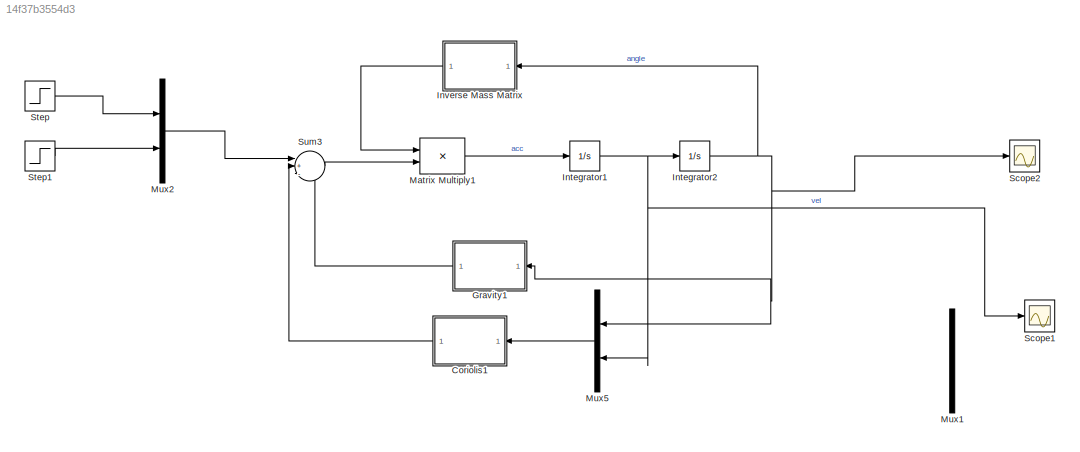
MODEL slx_14f37b3554d3
KIND model
CONFIG AbsTol = auto
CONFIG EnableMultiTasking = off
CONFIG FixedStep = auto
CONFIG MaxStep = auto
CONFIG MinStep = auto
CONFIG RelTol = 1e-3
CONFIG SampleTimeConstraint = Unconstrained
CONFIG Solver = VariableStepAuto
CONFIG SolverName = VariableStepAuto
CONFIG StartTime = 0.0
CONFIG StopTime = 60
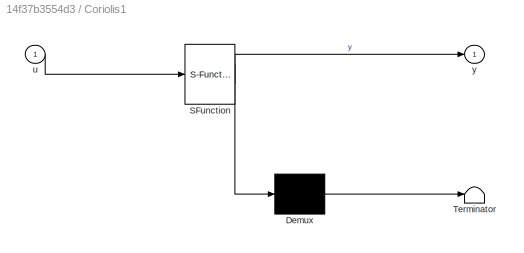
BLOCK [SubSystem] Coriolis1
  ErrorFcn = Stateflow.Translate.translate
  PermitHierarchicalResolution = ExplicitOnly
  Ports = [1, 1]
  RequestExecContextInheritance = off
  SFBlockType = MATLAB Function
  TreatAsAtomicUnit = on
BLOCK [Demux] Coriolis1/ Demux 
  Outputs = 1
  Ports = [1, 1]
BLOCK [S-Function] Coriolis1/ SFunction 
  EnableBusSupport = on
  FunctionName = sf_sfun
  PortCounts = [1 2]
  Ports = [1, 2]
  SFcnIsStateOwnerBlock = off
  SFunctionDeploymentMode = off
  Tag = Stateflow S-Function TestBlock 5
BLOCK [Terminator] Coriolis1/ Terminator 
BLOCK [Inport] Coriolis1/u
  IconDisplay = Port number
BLOCK [Outport] Coriolis1/y
  IconDisplay = Port number
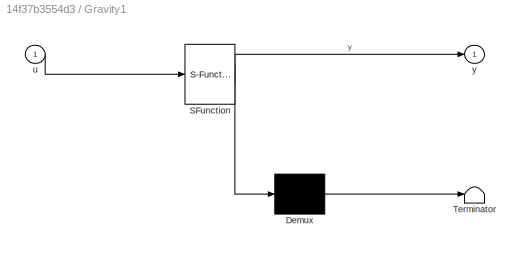
BLOCK [SubSystem] Gravity1
  ErrorFcn = Stateflow.Translate.translate
  PermitHierarchicalResolution = ExplicitOnly
  Ports = [1, 1]
  RequestExecContextInheritance = off
  SFBlockType = MATLAB Function
  TreatAsAtomicUnit = on
BLOCK [Demux] Gravity1/ Demux 
  Outputs = 1
  Ports = [1, 1]
BLOCK [S-Function] Gravity1/ SFunction 
  EnableBusSupport = on
  FunctionName = sf_sfun
  PortCounts = [1 2]
  Ports = [1, 2]
  SFcnIsStateOwnerBlock = off
  SFunctionDeploymentMode = off
  Tag = Stateflow S-Function TestBlock 6
BLOCK [Terminator] Gravity1/ Terminator 
BLOCK [Inport] Gravity1/u
  IconDisplay = Port number
BLOCK [Outport] Gravity1/y
  IconDisplay = Port number
BLOCK [Integrator] Integrator1
  InitialCondition = [0; 0]
  Ports = [1, 1]
BLOCK [Integrator] Integrator2
  InitialCondition = [0; 0]
  Ports = [1, 1]
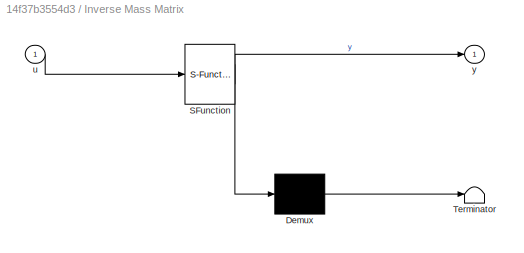
BLOCK [SubSystem] Inverse Mass Matrix
  ErrorFcn = Stateflow.Translate.translate
  PermitHierarchicalResolution = ExplicitOnly
  Ports = [1, 1]
  RequestExecContextInheritance = off
  SFBlockType = MATLAB Function
  TreatAsAtomicUnit = on
BLOCK [Demux] Inverse Mass Matrix/ Demux 
  Outputs = 1
  Ports = [1, 1]
BLOCK [S-Function] Inverse Mass Matrix/ SFunction 
  EnableBusSupport = on
  FunctionName = sf_sfun
  PortCounts = [1 2]
  Ports = [1, 2]
  SFcnIsStateOwnerBlock = off
  SFunctionDeploymentMode = off
  Tag = Stateflow S-Function TestBlock 3
BLOCK [Terminator] Inverse Mass Matrix/ Terminator 
BLOCK [Inport] Inverse Mass Matrix/u
  IconDisplay = Port number
BLOCK [Outport] Inverse Mass Matrix/y
  IconDisplay = Port number
BLOCK [Product] Matrix Multiply1
  InputSameDT = off
  Multiplication = Matrix(*)
  OutDataTypeStr = Inherit: Inherit via internal rule
  Ports = [2, 1]
  RndMeth = Floor
  SaturateOnIntegerOverflow = off
BLOCK [Mux] Mux1
  DisplayOption = bar
  Inputs = 2
  Ports = [2, 1]
BLOCK [Mux] Mux2
  DisplayOption = bar
  Inputs = 2
  Ports = [2, 1]
BLOCK [Mux] Mux5
  DisplayOption = bar
  Inputs = 2
  Ports = [2, 1]
BLOCK [Scope] Scope1
  Floating = off
  NumInputPorts = 1
  Ports = [1]
  ScopeSpecificationString = Simulink.scopes.TimeScopeBlockCfg('CurrentConfiguration', extmgr.ConfigurationSet(extmgr.Configuration('Core','General UI',true),extmgr.Configuration('Core','Source UI',true),extmgr.Configuration('Sources','WiredSimulink',true),extmgr.Configuration('Visuals','Time Domain',true,'SerializedDisplays',{struct('MinYLimReal','-155.01033','MaxYLimReal','79.2961','YLabelReal','','MinYLimMag',' 0.00000','M...<+1419ch>
BLOCK [Scope] Scope2
  Floating = off
  NumInputPorts = 1
  Ports = [1]
  ScopeSpecificationString = Simulink.scopes.TimeScopeBlockCfg('CurrentConfiguration', extmgr.ConfigurationSet(extmgr.Configuration('Core','General UI',true),extmgr.Configuration('Core','Source UI',true),extmgr.Configuration('Sources','WiredSimulink',true,'DataLoggingVariableName','ScopeData2'),extmgr.Configuration('Visuals','Time Domain',true,'SerializedDisplays',{struct('MinYLimReal','-1512.90126','MaxYLimReal','586.10223',...<+1472ch>
BLOCK [Step] Step
  After = 0
  SampleTime = 0
BLOCK [Step] Step1
  After = 0.0001
  SampleTime = 0
  Time = 2
BLOCK [Sum] Sum3
  IconShape = round
  InputSameDT = off
  Inputs = |+--
  OutDataTypeStr = Inherit: Inherit via internal rule
  Ports = [3, 1]
  SaturateOnIntegerOverflow = off
LINE Coriolis1:1 -> Sum3:2
LINE Gravity1:1 -> Sum3:3
NET Integrator1:1 -> Integrator2:1, Mux5:2, Scope1:1
NET Integrator2:1 -> Gravity1:1, Inverse Mass Matrix:1, Mux5:1, Scope2:1
LINE Inverse Mass Matrix:1 -> Matrix Multiply1:1
LINE Matrix Multiply1:1 -> Integrator1:1
LINE Mux2:1 -> Sum3:1
LINE Mux5:1 -> Coriolis1:1
LINE Step1:1 -> Mux2:2
LINE Step:1 -> Mux2:1
LINE Sum3:1 -> Matrix Multiply1:2
note: NET lines group one-source signal fan-out (src -> all destinations, sorted); 1:1 wires keep LINE
CHART Inverse Mass Matrix states=1 transitions=1
  STATE_LABEL 'eML_blk_kernel()'
  STATE_LABEL 'SCRIPT:\nfunction y = INVMass(u)\n\nthe1 = u(1);\nthe2 = u(2);\n\nm1 = 0.233;   %kg\nm2 = 0.2;\nl1 = 0.192;\nl2 = 0.185;\nL1 = 0.27;\nL2 = 0.23;\ng = 9.81;\n\nI1 = (1/3)*m1*l1^2;\nI2 = (1/3)*m2*l2^2;\n\nM11 = m1*l1^2 + m2*(L1^2 + l2^2 + L1*l2*cos(the2)) + I1 + I2;\nM12 = m2*(l2^2 + L1*l2*cos(the2)) + I2;\nM21 = m2*(l2^2 + L1*l2*cos(the2)) + I2;\nM22 = m2*l2^2 + I2;\n\ncoef = 1/(M11*M22 - M12*M21);\ninvM = coef*[M22, -M1...<+26ch>'
CHART Coriolis1 states=1 transitions=1
  STATE_LABEL 'eML_blk_kernel()'
  STATE_LABEL 'SCRIPT:\nfunction y = V(u)\n\nthe1 = u(1);\nthe2 = u(2);\n\nvel1 = u(3);\nvel2 = u(4);\n\nm1 = 0.233;   %kg\nm2 = 0.2;\nl1 = 0.192;\nl2 = 0.185;\nL1 = 0.27;\nL2 = 0.23;\ng = 9.81;\n\nI1 = (1/3)*m1*l1^2;\nI2 = (1/3)*m2*l2^2;\n\n\nV11 = -m2*L1*l2*sin(the2)*(vel1*vel2 + 0.5*vel2^2);\nV21 = 0.5*m2*L1*l2*sin(the2)*vel1^2;\n\n\ny = [V11;V21];\n'
CHART Gravity1 states=1 transitions=1
  STATE_LABEL 'eML_blk_kernel()'
  STATE_LABEL 'SCRIPT:\nfunction y = G(u)\n\nthe1 = u(1);\nthe2 = u(2);\n\nm1 = 0.233;   %kg\nm2 = 0.2;\nl1 = 0.192;\nl2 = 0.185;\nL1 = 0.27;\nL2 = 0.23;\ng = 9.81;\n\nI1 = (1/3)*m1*l1^2;\nI2 = (1/3)*m2*l2^2;\n\nG11 = m1*g*l1*cos(the1) + m2*g*L1*cos(the1) + m2*g*l2*cos(the1+the2);\nG21 = m2*g*l2*cos(the1+the2);\n\ny = [G11;G21];\n'
